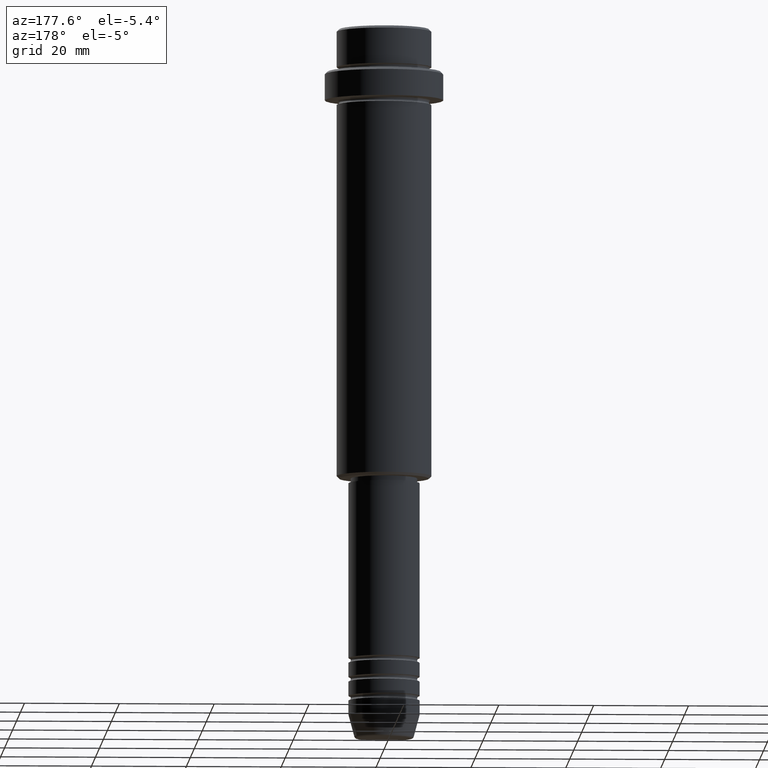
[diagram: clean part render]
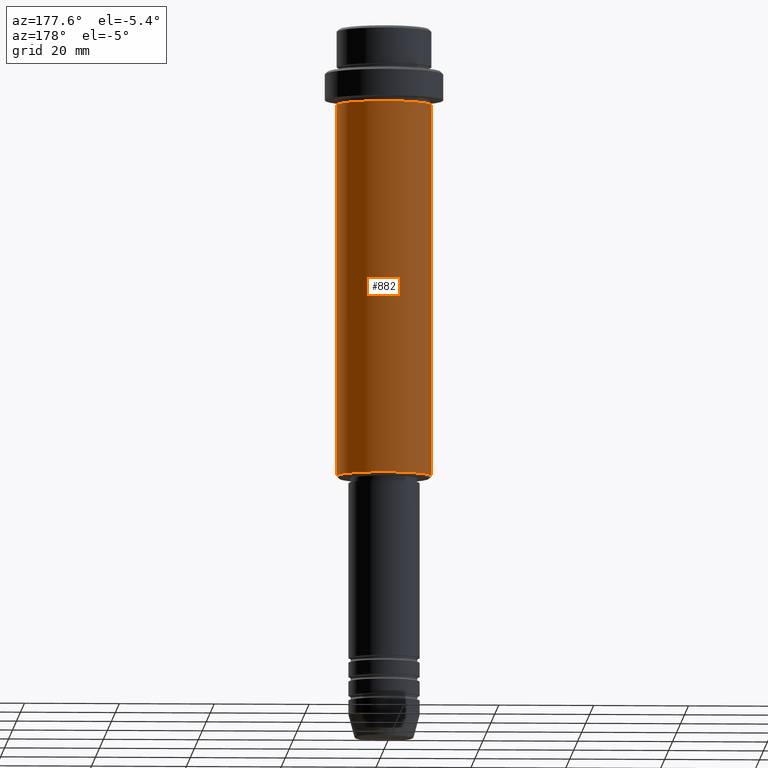
[diagram: same view with one face highlighted and labeled with its STEP entity id]
A machine part, auxiliary view. The second image highlights one B-rep face of the part: STEP entity #882.
In plain terms, the highlighted cylindrical surface (partial cylindrical patch) has radius 10 mm, axis along (-0, -0, 1).
Its self-contained STEP definition (entity closure, byte-faithful):
#76 = AXIS2_PLACEMENT_3D ( 'NONE', #804, #907, #1019 ) ;
#87 = CYLINDRICAL_SURFACE ( 'NONE', #948, 10.00000000000000000 ) ;
#118 = VERTEX_POINT ( 'NONE', #197 ) ;
#138 = CIRCLE ( 'NONE', #76, 10.00000000000000000 ) ;
#197 = CARTESIAN_POINT ( 'NONE',  ( -10.00000000000000000, 1.224646799147353256E-15, -16.00000000000000000 ) ) ;
#270 = DIRECTION ( 'NONE',  ( -1.000000000000000000, 0.000000000000000000, 0.000000000000000000 ) ) ;
#320 = EDGE_CURVE ( 'NONE', #599, #499, #1378, .T. ) ;
#435 = VECTOR ( 'NONE', #1277, 1000.000000000000000 ) ;
#499 = VERTEX_POINT ( 'NONE', #1040 ) ;
#514 = ORIENTED_EDGE ( 'NONE', *, *, #320, .T. ) ;
#521 = LINE ( 'NONE', #842, #435 ) ;
#567 = DIRECTION ( 'NONE',  ( -0.000000000000000000, -0.000000000000000000, 1.000000000000000000 ) ) ;
#599 = VERTEX_POINT ( 'NONE', #1208 ) ;
#691 = VECTOR ( 'NONE', #1375, 1000.000000000000000 ) ;
#700 = CARTESIAN_POINT ( 'NONE',  ( -10.00000000000000000, 1.224646799147353256E-15, 0.000000000000000000 ) ) ;
#718 = CARTESIAN_POINT ( 'NONE',  ( 0.000000000000000000, 0.000000000000000000, 0.000000000000000000 ) ) ;
#726 = FACE_OUTER_BOUND ( 'NONE', #823, .T. ) ;
#801 = CARTESIAN_POINT ( 'NONE',  ( 10.00000000000000000, 0.000000000000000000, -16.00000000000000000 ) ) ;
#804 = CARTESIAN_POINT ( 'NONE',  ( 0.000000000000000000, 0.000000000000000000, -16.00000000000000000 ) ) ;
#821 = EDGE_CURVE ( 'NONE', #1261, #118, #138, .T. ) ;
#823 = EDGE_LOOP ( 'NONE', ( #514, #914, #1257, #1101 ) ) ;
#833 = LINE ( 'NONE', #700, #691 ) ;
#842 = CARTESIAN_POINT ( 'NONE',  ( 10.00000000000000000, 0.000000000000000000, 0.000000000000000000 ) ) ;
#882 = ADVANCED_FACE ( 'NONE', ( #726 ), #87, .T. ) ;
#907 = DIRECTION ( 'NONE',  ( -0.000000000000000000, -0.000000000000000000, 1.000000000000000000 ) ) ;
#914 = ORIENTED_EDGE ( 'NONE', *, *, #1374, .T. ) ;
#927 = CARTESIAN_POINT ( 'NONE',  ( 0.000000000000000000, 0.000000000000000000, -94.49999999999998579 ) ) ;
#935 = EDGE_CURVE ( 'NONE', #599, #1261, #521, .T. ) ;
#948 = AXIS2_PLACEMENT_3D ( 'NONE', #718, #957, #1165 ) ;
#957 = DIRECTION ( 'NONE',  ( -0.000000000000000000, -0.000000000000000000, 1.000000000000000000 ) ) ;
#1019 = DIRECTION ( 'NONE',  ( 1.000000000000000000, 0.000000000000000000, 0.000000000000000000 ) ) ;
#1040 = CARTESIAN_POINT ( 'NONE',  ( -10.00000000000000000, 1.224646799147353256E-15, -94.49999999999998579 ) ) ;
#1101 = ORIENTED_EDGE ( 'NONE', *, *, #935, .F. ) ;
#1118 = AXIS2_PLACEMENT_3D ( 'NONE', #927, #567, #270 ) ;
#1165 = DIRECTION ( 'NONE',  ( 1.000000000000000000, 0.000000000000000000, 0.000000000000000000 ) ) ;
#1208 = CARTESIAN_POINT ( 'NONE',  ( 10.00000000000000000, 0.000000000000000000, -94.49999999999998579 ) ) ;
#1257 = ORIENTED_EDGE ( 'NONE', *, *, #821, .F. ) ;
#1261 = VERTEX_POINT ( 'NONE', #801 ) ;
#1277 = DIRECTION ( 'NONE',  ( -0.000000000000000000, -0.000000000000000000, 1.000000000000000000 ) ) ;
#1374 = EDGE_CURVE ( 'NONE', #499, #118, #833, .T. ) ;
#1375 = DIRECTION ( 'NONE',  ( -0.000000000000000000, -0.000000000000000000, 1.000000000000000000 ) ) ;
#1378 = CIRCLE ( 'NONE', #1118, 10.00000000000000000 ) ;